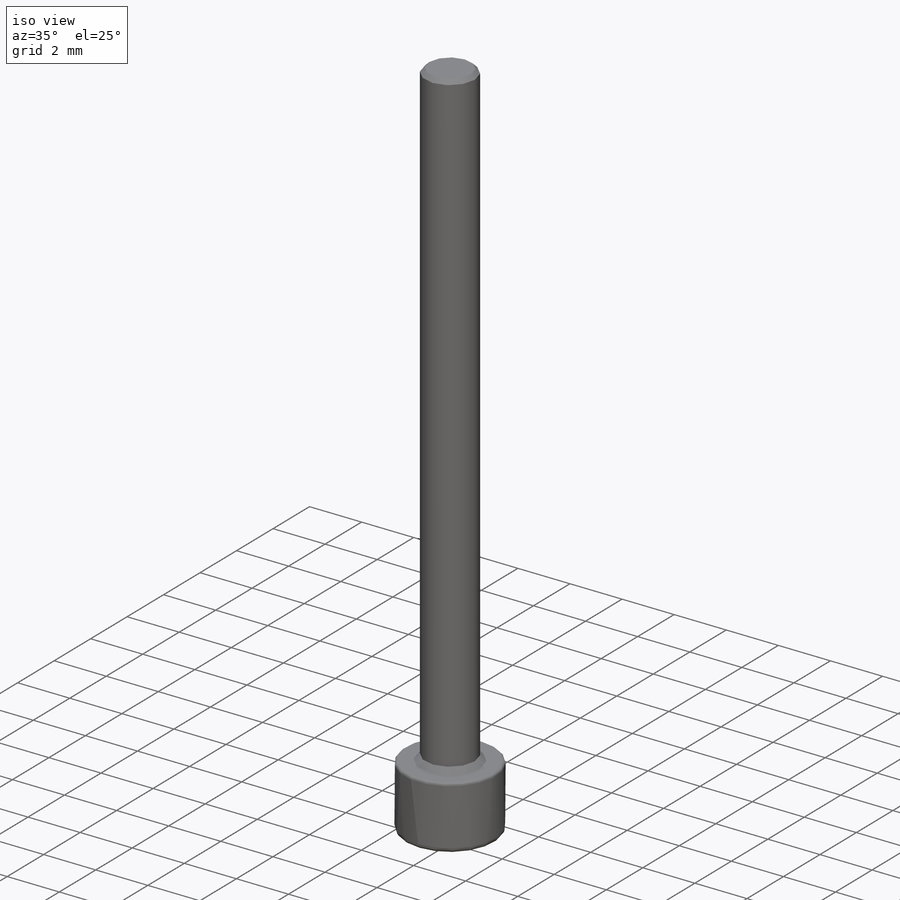
[diagram: iso view]
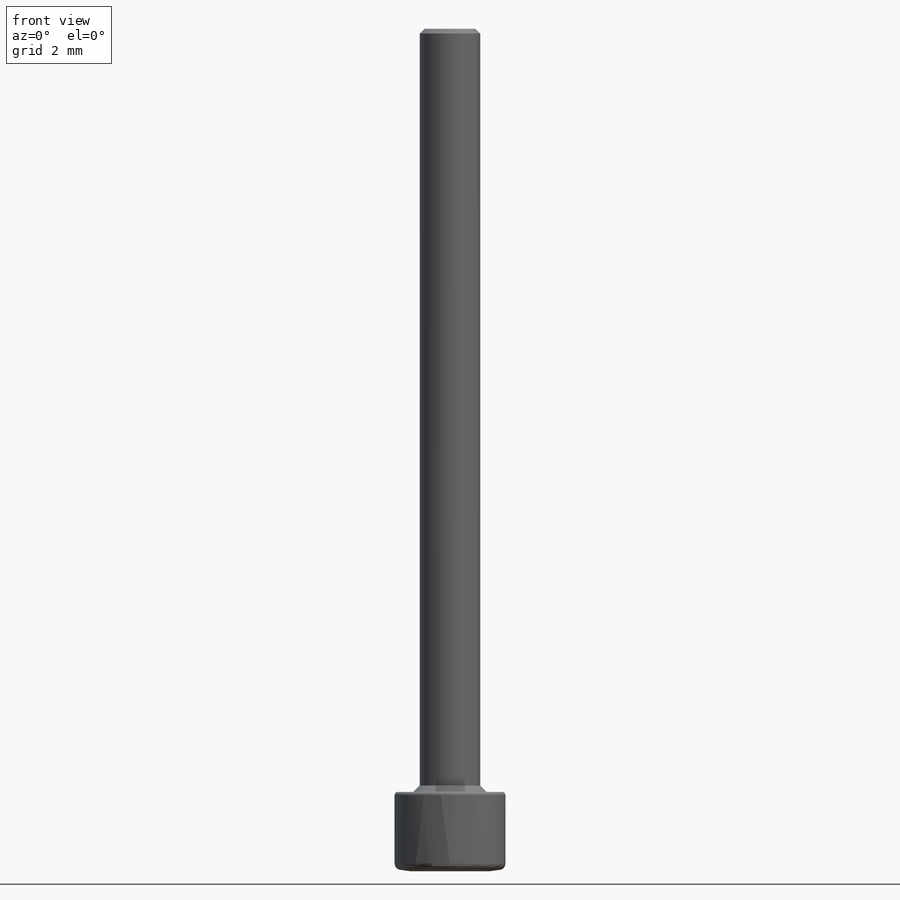
[diagram: front view]
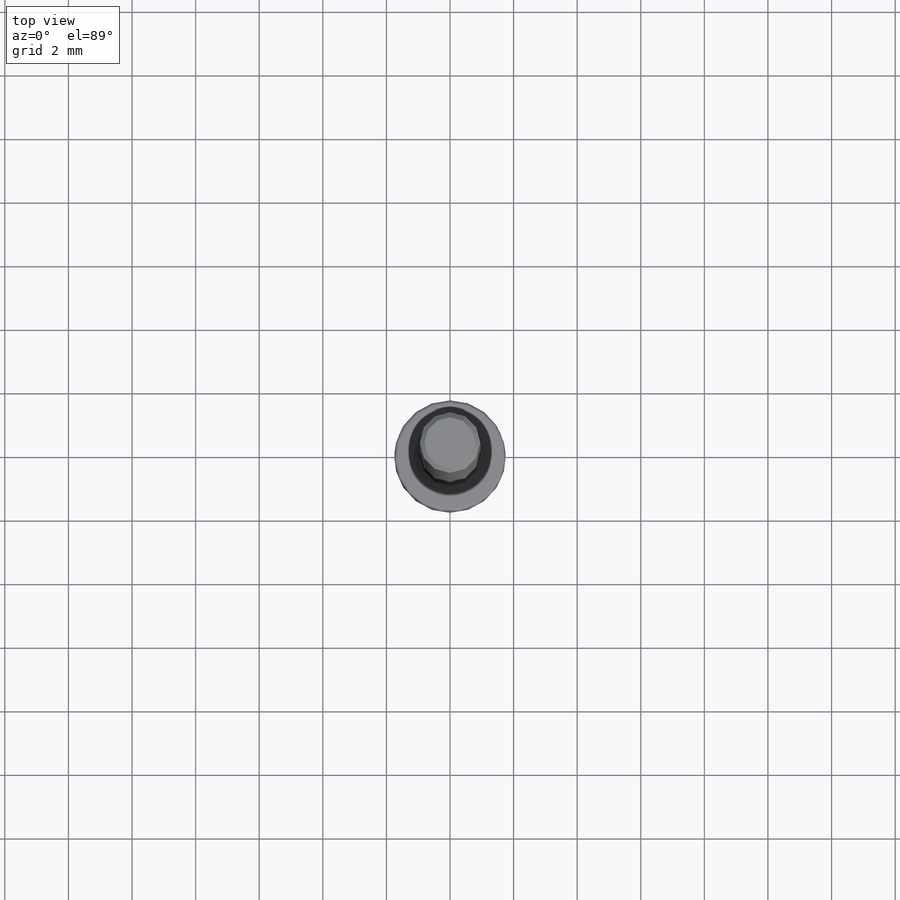
[diagram: top view]
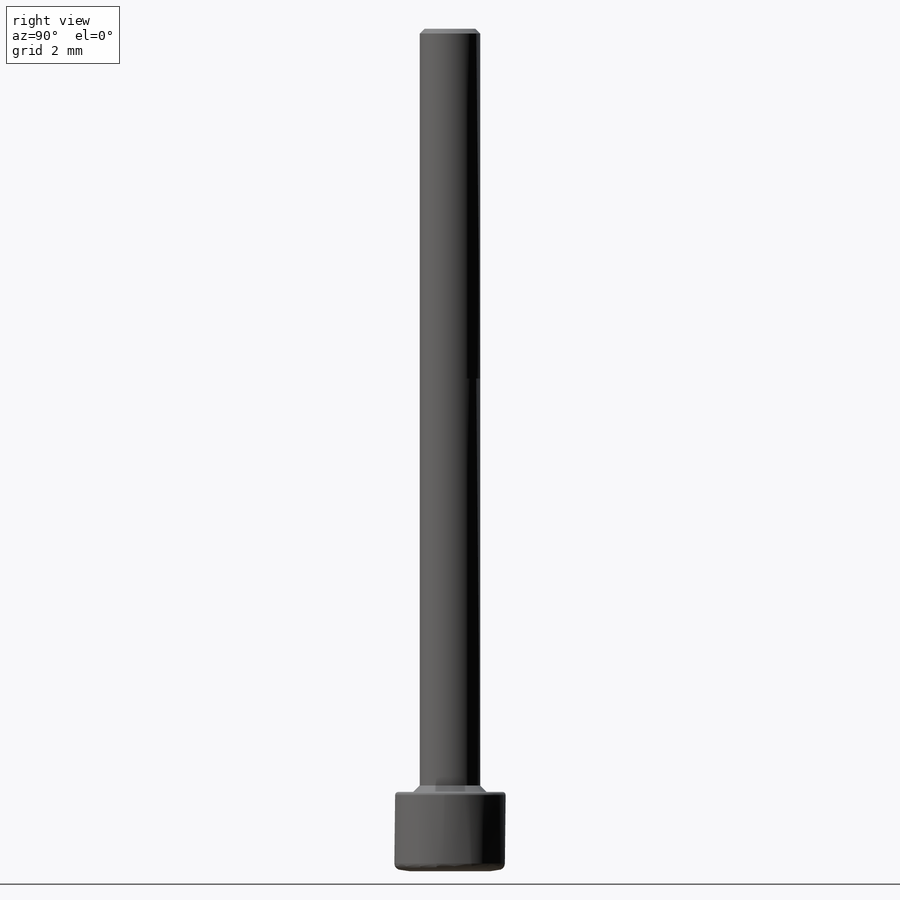
[diagram: right view]
SOLIDWORKS PART (.sldprt)
format: sldprt  version: not decoded by parser v0  size: 305,664 bytes
history: native  units: mm
features: sketch x5, fillet x3, extrude x2, chamfer x2, material x1, cut_extrude x1, cut_revolve x1, plane x1 (+12 scaffold rows collapsed)
feature tree (28):
  scaffold x12  (default folders/planes/origin — collapsed)
  material  "Material <not specified>"
  sketch  "Sketch1"  dims[D1=1.9mm]
  extrude  "Extrude1"  Depth=24mm
  sketch  "Sketch2"  dims[D1=0.0mm]
  extrude  "Extrude2"  Depth=2.5mm
  sketch  "Sketch4"  dims[D1=0.25mm D2=0.5mm D3=1.1mm D4=2.2mm]
  sketch  "Sketch3"  dims[c1.D1=1.0mm c1.D2=~0.289664mm c2.D2=120.0deg c2.D1=360.0deg]
  cut_extrude  "Cut1"  [1 undecoded]
  fillet  "Fillet1"  Radius=0.1mm
  chamfer  "Shamfer1"  Distance=0.15mm Angle=45deg
  sketch  "草圖4"  dims[c1.D1=4.5mm c1.D2=1.25mm c2.D1=1.0mm]
  cut_revolve  "Cut-Revolve1"  Angle=360deg
  fillet  "Fillet2"  Radius=0.2mm
  chamfer  "Chamfer2"  Distance=0.2mm Angle=45deg
  fillet  "Fillet3"  Radius=0.1mm
  plane  "Plane2"  Offset=11mm
decode coverage: 13 of 14 modeling features carry decoded parameters
note: ~ marks probable driven/reference dimensions
note: 1 parameter value undecoded
note: suppression state not decoded; provenance and decode notes live in map.json
